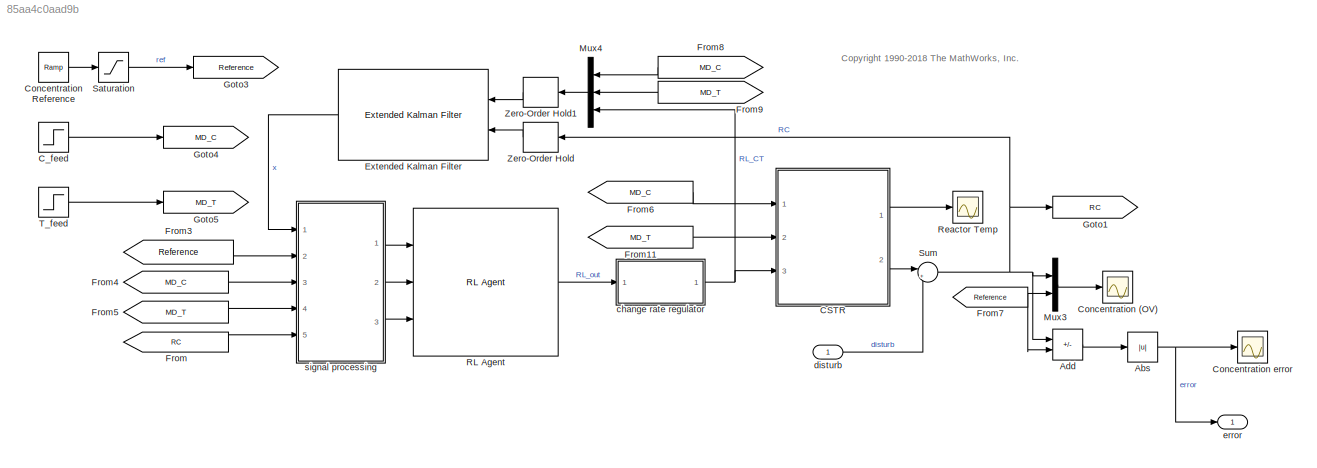
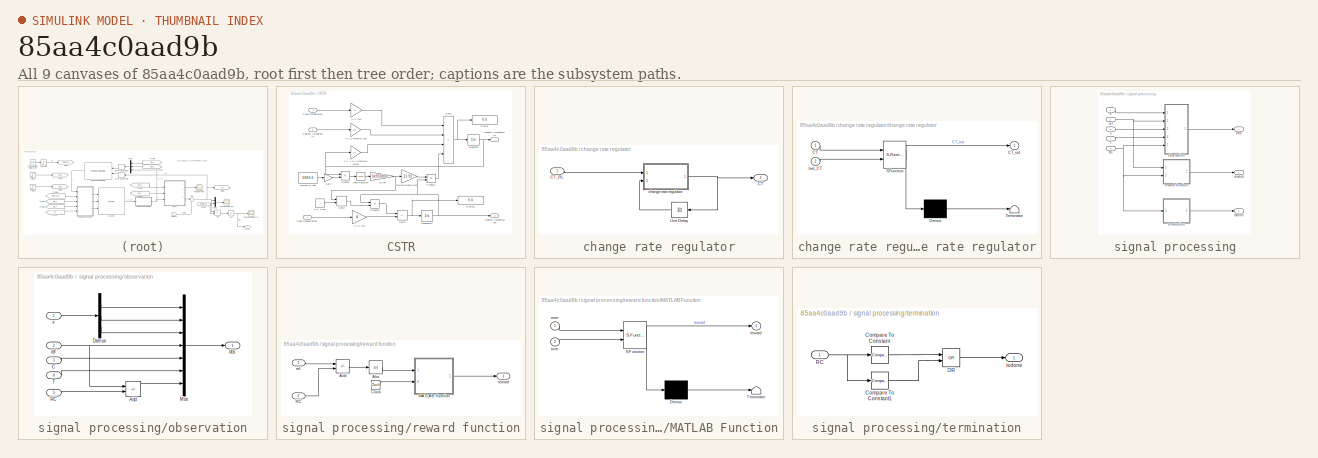
[diagram: thumbnail index - all 9 canvases of the model, root first then tree order]
MODEL slx_85aa4c0aad9b
KIND model
CONFIG AbsTol = auto
CONFIG EnableMultiTasking = off
CONFIG FixedStep = Ts
CONFIG MaxStep = auto
CONFIG MinStep = auto
CONFIG RelTol = 1e-3
CONFIG SampleTimeConstraint = Unconstrained
CONFIG SolverName = FixedStepAuto
CONFIG StartTime = 0.0
CONFIG StopTime = tspan(end)
BLOCK [Abs] Abs
  SaturateOnIntegerOverflow = off
BLOCK [Sum] Add
  IconShape = rectangular
  Inputs = +-
  Ports = [2, 1]
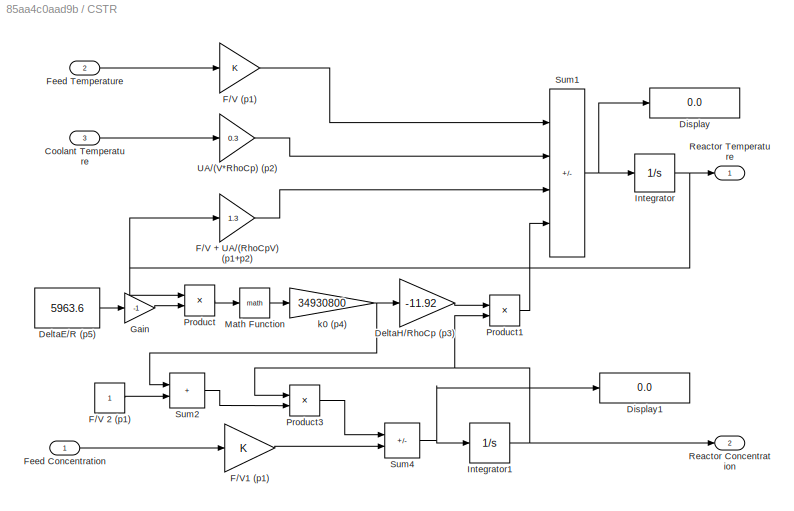
BLOCK [SubSystem] CSTR
  Ports = [3, 2]
  RequestExecContextInheritance = off
BLOCK [Inport] CSTR/Coolant Temperature
  Port = 3
BLOCK [Constant] CSTR/DeltaE//R (p5)
  Value = 5963.6
BLOCK [Gain] CSTR/DeltaH//RhoCp (p3)
  Gain = -11.92
  OutDataTypeStr = Inherit: Same as input
  ParamDataTypeStr = Inherit: Same as input
  SaturateOnIntegerOverflow = on
BLOCK [Display] CSTR/Display
  Decimation = 1
  Ports = [1]
BLOCK [Display] CSTR/Display1
  Decimation = 1
  Ports = [1]
BLOCK [Gain] CSTR/F//V (p1)
  OutDataTypeStr = Inherit: Same as input
  ParamDataTypeStr = Inherit: Same as input
  SaturateOnIntegerOverflow = on
BLOCK [Gain] CSTR/F//V + UA//(RhoCpV) (p1+p2)
  Gain = 1.3
  OutDataTypeStr = Inherit: Same as input
  ParamDataTypeStr = Inherit: Same as input
  SaturateOnIntegerOverflow = on
BLOCK [Constant] CSTR/F//V 2 (p1)
BLOCK [Gain] CSTR/F//V1 (p1)
  OutDataTypeStr = Inherit: Same as input
  ParamDataTypeStr = Inherit: Same as input
  SaturateOnIntegerOverflow = on
BLOCK [Inport] CSTR/Feed Concentration
BLOCK [Inport] CSTR/Feed Temperature
  Port = 2
BLOCK [Gain] CSTR/Gain
  Gain = -1
BLOCK [Integrator] CSTR/Integrator
  InitialCondition = x0(1)
  LimitOutput = on
  LowerSaturationLimit = 0
  Ports = [1, 1]
BLOCK [Integrator] CSTR/Integrator1
  InitialCondition = x0(2)
  LimitOutput = on
  LowerSaturationLimit = 0
  Ports = [1, 1]
BLOCK [Math] CSTR/Math Function
  Ports = [1, 1]
  SignedPower = on
BLOCK [Product] CSTR/Product
  InputSameDT = on
  Inputs = /*
  OutDataTypeStr = Inherit: Same as first input
  Ports = [2, 1]
  RndMeth = Zero
  SaturateOnIntegerOverflow = on
BLOCK [Product] CSTR/Product1
  InputSameDT = on
  OutDataTypeStr = Inherit: Same as first input
  Ports = [2, 1]
  RndMeth = Zero
  SaturateOnIntegerOverflow = on
BLOCK [Product] CSTR/Product3
  InputSameDT = on
  OutDataTypeStr = Inherit: Same as first input
  Ports = [2, 1]
  RndMeth = Zero
  SaturateOnIntegerOverflow = on
BLOCK [Outport] CSTR/Reactor Concentration
  Port = 2
  VectorParamsAs1DForOutWhenUnconnected = off
BLOCK [Outport] CSTR/Reactor Temperature
  VectorParamsAs1DForOutWhenUnconnected = off
BLOCK [Sum] CSTR/Sum1
  IconShape = rectangular
  InputSameDT = on
  Inputs = ++--
  OutDataTypeStr = Inherit: Same as first input
  Ports = [4, 1]
  SaturateOnIntegerOverflow = on
BLOCK [Sum] CSTR/Sum2
  IconShape = rectangular
  InputSameDT = on
  OutDataTypeStr = Inherit: Same as first input
  Ports = [2, 1]
  SaturateOnIntegerOverflow = on
BLOCK [Sum] CSTR/Sum4
  IconShape = rectangular
  InputSameDT = on
  Inputs = -+
  OutDataTypeStr = Inherit: Same as first input
  Ports = [2, 1]
  SaturateOnIntegerOverflow = on
BLOCK [Gain] CSTR/UA//(V*RhoCp) (p2)
  Gain = 0.3
  OutDataTypeStr = Inherit: Same as input
  ParamDataTypeStr = Inherit: Same as input
  SaturateOnIntegerOverflow = on
BLOCK [Gain] CSTR/k0 (p4)
  Gain = 34930800
  OutDataTypeStr = Inherit: Same as input
  ParamDataTypeStr = Inherit: Same as input
  SaturateOnIntegerOverflow = on
BLOCK [Step] C_feed
  After = 10.3
  Before = 10
  SampleTime = 0
  Time = 10
BLOCK [Scope] Concentration (OV)
  Floating = off
  NumInputPorts = 1
  Ports = [1]
  ScopeSpecificationString = Simulink.scopes.TimeScopeBlockCfg('CurrentConfiguration', extmgr.ConfigurationSet(extmgr.Configuration('Core','General UI',true),extmgr.Configuration('Core','Source UI',true),extmgr.Configuration('Sources','WiredSimulink',true),extmgr.Configuration('Visuals','Time Domain',true,'SerializedDisplays',{struct('MinYLimReal','1.15346','MaxYLimReal','9.39385','YLabelReal','','MinYLimMag','1.15346','MaxYL...<+1400ch>
BLOCK [Reference] Concentration Reference  REF=simulink/Sources/Ramp
  Ports = [0, 1]
  SourceBlock = simulink/Sources/Ramp
  SourceProductBaseCode = SL
  SourceType = Ramp
BLOCK [Scope] Concentration error
  Floating = off
  NumInputPorts = 1
  Ports = [1]
  ScopeSpecificationString = Simulink.scopes.TimeScopeBlockCfg('CurrentConfiguration', extmgr.ConfigurationSet(extmgr.Configuration('Core','General UI',true),extmgr.Configuration('Core','Source UI',true),extmgr.Configuration('Sources','WiredSimulink',true,'DataLoggingVariableName','ScopeData1'),extmgr.Configuration('Visuals','Time Domain',true,'SerializedDisplays',{struct('MinYLimReal','1.15346','MaxYLimReal','9.39385','YLabe...<+1439ch>
BLOCK [Reference] Extended Kalman Filter  REF=sharedTrackingLibrary/Extended Kalman Filter
  Ports = [2, 1]
  SourceBlock = sharedTrackingLibrary/Extended Kalman Filter
  SourceProductBaseCode = CT,DR,TF,ID,LP,NV,AR,RO,RR,UV,VE
  SourceType = Extended Kalman Filter
BLOCK [From] From
  GotoTag = RC
BLOCK [From] From11
  GotoTag = MD_T
BLOCK [From] From3
  GotoTag = Reference
BLOCK [From] From4
  GotoTag = MD_C
BLOCK [From] From5
  GotoTag = MD_T
BLOCK [From] From6
  GotoTag = MD_C
BLOCK [From] From7
  GotoTag = Reference
BLOCK [From] From8
  GotoTag = MD_C
BLOCK [From] From9
  GotoTag = MD_T
BLOCK [Goto] Goto1
  GotoTag = RC
BLOCK [Goto] Goto3
  GotoTag = Reference
BLOCK [Goto] Goto4
  GotoTag = MD_C
BLOCK [Goto] Goto5
  GotoTag = MD_T
BLOCK [Mux] Mux3
  DisplayOption = bar
  Inputs = 2
  Ports = [2, 1]
BLOCK [Mux] Mux4
  DisplayOption = bar
  Inputs = 3
  Ports = [3, 1]
BLOCK [Reference] RL Agent  REF=rllib/RL Agent
  Ports = [3, 1]
  SourceBlock = rllib/RL Agent
  SourceProductBaseCode = RL
  SourceType = RL Agent
BLOCK [Scope] Reactor Temp
  Floating = off
  NumInputPorts = 1
  Ports = [1]
  ScopeSpecificationString = Simulink.scopes.TimeScopeBlockCfg('CurrentConfiguration', extmgr.ConfigurationSet(extmgr.Configuration('Core','General UI',true),extmgr.Configuration('Core','Source UI',true),extmgr.Configuration('Sources','WiredSimulink',true,'DataLoggingVariableName','ScopeData1'),extmgr.Configuration('Visuals','Time Domain',true,'SerializedDisplays',{struct('MinYLimReal','301.39432','MaxYLimReal','399.70963','Y...<+1404ch>
BLOCK [Saturate] Saturation
  LowerLimit = 2
  UpperLimit = 10
BLOCK [Sum] Sum
  Inputs = |++
  Ports = [2, 1]
BLOCK [Step] T_feed
  After = 298.15
  Before = 298.15
  SampleTime = 301
  Time = 20
BLOCK [ZeroOrderHold] Zero-Order Hold
  SampleTime = Ts
BLOCK [ZeroOrderHold] Zero-Order Hold1
  SampleTime = Ts
BLOCK [SubSystem] change rate regulator
  Ports = [1, 1]
  RequestExecContextInheritance = off
BLOCK [Outport] change rate regulator/CT 
BLOCK [Inport] change rate regulator/CT_RL
BLOCK [UnitDelay] change rate regulator/Unit Delay
  HasFrameUpgradeWarning = on
  InitialCondition = 300
  SampleTime = -1
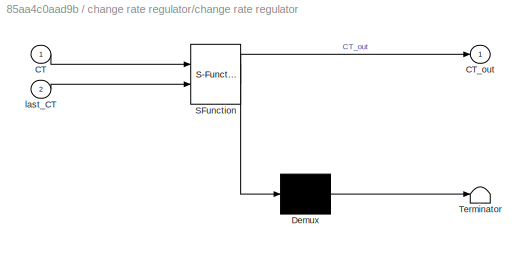
BLOCK [SubSystem] change rate regulator/change rate regulator
  ErrorFcn = Stateflow.Translate.translate
  PermitHierarchicalResolution = ExplicitOnly
  Ports = [2, 1]
  RequestExecContextInheritance = off
  SFBlockType = MATLAB Function
  TreatAsAtomicUnit = on
BLOCK [Demux] change rate regulator/change rate regulator/ Demux 
  Outputs = 1
  Ports = [1, 1]
BLOCK [S-Function] change rate regulator/change rate regulator/ SFunction 
  EnableBusSupport = on
  FunctionName = sf_sfun
  PortCounts = [2 2]
  Ports = [2, 2]
  SFcnIsStateOwnerBlock = off
  SFunctionDeploymentMode = off
  Tag = Stateflow S-Function 1
BLOCK [Terminator] change rate regulator/change rate regulator/ Terminator 
BLOCK [Inport] change rate regulator/change rate regulator/CT
BLOCK [Outport] change rate regulator/change rate regulator/CT_out
BLOCK [Inport] change rate regulator/change rate regulator/last_CT
  Port = 2
BLOCK [Inport] disturb
BLOCK [Outport] error
BLOCK [SubSystem] signal processing
  Ports = [5, 3]
  RequestExecContextInheritance = off
BLOCK [Inport] signal processing/C
  Port = 3
BLOCK [Inport] signal processing/RC
  Port = 5
BLOCK [Inport] signal processing/T
  Port = 4
BLOCK [Outport] signal processing/isdone
  Port = 3
BLOCK [Outport] signal processing/obs
BLOCK [SubSystem] signal processing/observation
  Ports = [5, 1]
  RequestExecContextInheritance = off
BLOCK [Sum] signal processing/observation/Add
  IconShape = rectangular
  Inputs = +-
  Ports = [2, 1]
BLOCK [Inport] signal processing/observation/C
  Port = 3
BLOCK [Demux] signal processing/observation/Demux
  Outputs = 3
  Ports = [1, 3]
BLOCK [Mux] signal processing/observation/Mux
  DisplayOption = bar
  Inputs = 7
  Ports = [7, 1]
BLOCK [Inport] signal processing/observation/RC
  Port = 5
BLOCK [Inport] signal processing/observation/T
  Port = 4
BLOCK [Outport] signal processing/observation/obs
BLOCK [Inport] signal processing/observation/ref
  Port = 2
BLOCK [Inport] signal processing/observation/x
BLOCK [Inport] signal processing/ref
  Port = 2
BLOCK [Outport] signal processing/reward
  Port = 2
BLOCK [SubSystem] signal processing/reward function
  Ports = [2, 1]
  RequestExecContextInheritance = off
BLOCK [Abs] signal processing/reward function/Abs
  SaturateOnIntegerOverflow = off
BLOCK [Sum] signal processing/reward function/Add
  IconShape = rectangular
  Inputs = +-
  Ports = [2, 1]
BLOCK [Clock] signal processing/reward function/Clock
BLOCK [SubSystem] signal processing/reward function/MATLAB Function
  ErrorFcn = Stateflow.Translate.translate
  PermitHierarchicalResolution = ExplicitOnly
  Ports = [2, 1]
  RequestExecContextInheritance = off
  SFBlockType = MATLAB Function
  TreatAsAtomicUnit = on
BLOCK [Demux] signal processing/reward function/MATLAB Function/ Demux 
  Outputs = 1
  Ports = [1, 1]
BLOCK [S-Function] signal processing/reward function/MATLAB Function/ SFunction 
  EnableBusSupport = on
  FunctionName = sf_sfun
  PortCounts = [2 2]
  Ports = [2, 2]
  SFcnIsStateOwnerBlock = off
  SFunctionDeploymentMode = off
  Tag = Stateflow S-Function 2
BLOCK [Terminator] signal processing/reward function/MATLAB Function/ Terminator 
BLOCK [Inport] signal processing/reward function/MATLAB Function/error
BLOCK [Outport] signal processing/reward function/MATLAB Function/reward
BLOCK [Inport] signal processing/reward function/MATLAB Function/time
  Port = 2
BLOCK [Inport] signal processing/reward function/RC
  Port = 2
BLOCK [Inport] signal processing/reward function/ref
BLOCK [Outport] signal processing/reward function/reward
BLOCK [SubSystem] signal processing/termination
  Ports = [1, 1]
  RequestExecContextInheritance = off
BLOCK [Reference] signal processing/termination/Compare To Constant  REF=simulink/Logic and Bit
Operations/Compare
To Constant
  Ports = [1, 1]
  SourceBlock = simulink/Logic and Bit\nOperations/Compare\nTo Constant
  SourceProductBaseCode = SL
  SourceType = Compare To Constant
BLOCK [Reference] signal processing/termination/Compare To Constant1  REF=simulink/Logic and Bit
Operations/Compare
To Constant
  Ports = [1, 1]
  SourceBlock = simulink/Logic and Bit\nOperations/Compare\nTo Constant
  SourceProductBaseCode = SL
  SourceType = Compare To Constant
BLOCK [Logic] signal processing/termination/OR
  AllPortsSameDT = off
  IconShape = distinctive
  Operator = OR
  OutDataTypeStr = boolean
  Ports = [2, 1]
BLOCK [Inport] signal processing/termination/RC
BLOCK [Outport] signal processing/termination/isdone
BLOCK [Inport] signal processing/x
ANNOTATION (root): <copyright redacted>
NET Abs:1 -> Concentration error:1, error:1
LINE Add:1 -> Abs:1
LINE CSTR/Coolant Temperature:1 -> CSTR/UA//(V*RhoCp) (p2):1
LINE CSTR/DeltaE//R (p5):1 -> CSTR/Gain:1
LINE CSTR/DeltaH//RhoCp (p3):1 -> CSTR/Product1:1
LINE CSTR/F//V (p1):1 -> CSTR/Sum1:1
LINE CSTR/F//V + UA//(RhoCpV) (p1+p2):1 -> CSTR/Sum1:3
LINE CSTR/F//V 2 (p1):1 -> CSTR/Sum2:2
LINE CSTR/F//V1 (p1):1 -> CSTR/Sum4:2
LINE CSTR/Feed Concentration:1 -> CSTR/F//V1 (p1):1
LINE CSTR/Feed Temperature:1 -> CSTR/F//V (p1):1
LINE CSTR/Gain:1 -> CSTR/Product:2
NET CSTR/Integrator1:1 -> CSTR/Product1:2, CSTR/Product3:1, CSTR/Reactor Concentration:1
NET CSTR/Integrator:1 -> CSTR/F//V + UA//(RhoCpV) (p1+p2):1, CSTR/Product:1, CSTR/Reactor Temperature:1
LINE CSTR/Math Function:1 -> CSTR/k0 (p4):1
LINE CSTR/Product1:1 -> CSTR/Sum1:4
LINE CSTR/Product3:1 -> CSTR/Sum4:1
LINE CSTR/Product:1 -> CSTR/Math Function:1
NET CSTR/Sum1:1 -> CSTR/Display:1, CSTR/Integrator:1
LINE CSTR/Sum2:1 -> CSTR/Product3:2
NET CSTR/Sum4:1 -> CSTR/Display1:1, CSTR/Integrator1:1
LINE CSTR/UA//(V*RhoCp) (p2):1 -> CSTR/Sum1:2
NET CSTR/k0 (p4):1 -> CSTR/DeltaH//RhoCp (p3):1, CSTR/Sum2:1
LINE CSTR:1 -> Reactor Temp:1
LINE CSTR:2 -> Sum:1
LINE C_feed:1 -> Goto4:1
LINE Concentration Reference:1 -> Saturation:1
LINE Extended Kalman Filter:1 -> signal processing:1
LINE From11:1 -> CSTR:2
LINE From3:1 -> signal processing:2
LINE From4:1 -> signal processing:3
LINE From5:1 -> signal processing:4
LINE From6:1 -> CSTR:1
NET From7:1 -> Add:2, Mux3:2
LINE From8:1 -> Mux4:1
LINE From9:1 -> Mux4:2
LINE From:1 -> signal processing:5
LINE Mux3:1 -> Concentration (OV):1
LINE Mux4:1 -> Zero-Order Hold1:1
LINE RL Agent:1 -> change rate regulator:1
LINE Saturation:1 -> Goto3:1
NET Sum:1 -> Add:1, Goto1:1, Mux3:1, Zero-Order Hold:1
LINE T_feed:1 -> Goto5:1
LINE Zero-Order Hold1:1 -> Extended Kalman Filter:1
LINE Zero-Order Hold:1 -> Extended Kalman Filter:2
LINE change rate regulator/CT_RL:1 -> change rate regulator/change rate regulator:1
LINE change rate regulator/Unit Delay:1 -> change rate regulator/change rate regulator:2
NET change rate regulator/change rate regulator:1 -> change rate regulator/CT :1, change rate regulator/Unit Delay:1
NET change rate regulator:1 -> CSTR:3, Mux4:3
LINE disturb:1 -> Sum:2
LINE signal processing/C:1 -> signal processing/observation:3
NET signal processing/RC:1 -> signal processing/observation:5, signal processing/reward function:2, signal processing/termination:1
LINE signal processing/T:1 -> signal processing/observation:4
LINE signal processing/observation/Add:1 -> signal processing/observation/Mux:7
LINE signal processing/observation/C:1 -> signal processing/observation/Mux:5
LINE signal processing/observation/Demux:1 -> signal processing/observation/Mux:1
LINE signal processing/observation/Demux:2 -> signal processing/observation/Mux:2
LINE signal processing/observation/Demux:3 -> signal processing/observation/Mux:3
LINE signal processing/observation/Mux:1 -> signal processing/observation/obs:1
LINE signal processing/observation/RC:1 -> signal processing/observation/Add:2
LINE signal processing/observation/T:1 -> signal processing/observation/Mux:6
NET signal processing/observation/ref:1 -> signal processing/observation/Add:1, signal processing/observation/Mux:4
LINE signal processing/observation/x:1 -> signal processing/observation/Demux:1
LINE signal processing/observation:1 -> signal processing/obs:1
NET signal processing/ref:1 -> signal processing/observation:2, signal processing/reward function:1
LINE signal processing/reward function/Abs:1 -> signal processing/reward function/MATLAB Function:1
LINE signal processing/reward function/Add:1 -> signal processing/reward function/Abs:1
LINE signal processing/reward function/Clock:1 -> signal processing/reward function/MATLAB Function:2
LINE signal processing/reward function/MATLAB Function:1 -> signal processing/reward function/reward:1
LINE signal processing/reward function/RC:1 -> signal processing/reward function/Add:2
LINE signal processing/reward function/ref:1 -> signal processing/reward function/Add:1
LINE signal processing/reward function:1 -> signal processing/reward:1
LINE signal processing/termination/Compare To Constant1:1 -> signal processing/termination/OR:2
LINE signal processing/termination/Compare To Constant:1 -> signal processing/termination/OR:1
LINE signal processing/termination/OR:1 -> signal processing/termination/isdone:1
NET signal processing/termination/RC:1 -> signal processing/termination/Compare To Constant1:1, signal processing/termination/Compare To Constant:1
LINE signal processing/termination:1 -> signal processing/isdone:1
LINE signal processing/x:1 -> signal processing/observation:1
LINE signal processing:1 -> RL Agent:1
LINE signal processing:2 -> RL Agent:2
LINE signal processing:3 -> RL Agent:3
note: NET lines group one-source signal fan-out (src -> all destinations, sorted); 1:1 wires keep LINE
CHART signal processing/reward function/MATLAB Function states=1 transitions=1
  STATE_LABEL 'eML_blk_kernel()'
  STATE_LABEL 'SCRIPT:\nfunction reward = fcn(error, time)\n\npos = exp(-error);\nneg = -tanh(error/1.5);\n\nif error < 1.5\n    bonus = 1;\nelse\n    bonus = 0;\nend\n\nreward = 3*pos + 2*neg + bonus;\n\n% if time < 15\n%     reward = -0.1*tanh(error/1.5);\n% else\n%     reward = -5*tanh(error*1.5);\n% end\n% \n% if error < 1\n%     reward = reward + 10;\n% else\n%     reward = reward - 1;\n% end'
CHART change rate regulator/change rate regulator states=1 transitions=1
  STATE_LABEL 'eML_blk_kernel()'
  STATE_LABEL 'SCRIPT:\nfunction CT_out = fcn(CT, last_CT)\n\nif CT - last_CT > 5\n    CT_out = last_CT + 5;\n    \nelseif CT - last_CT < -5\n    CT_out = last_CT - 5;\n    \nelse\n    CT_out = CT;\nend'
CHART  states=0 transitions=0
CHART  states=0 transitions=0
